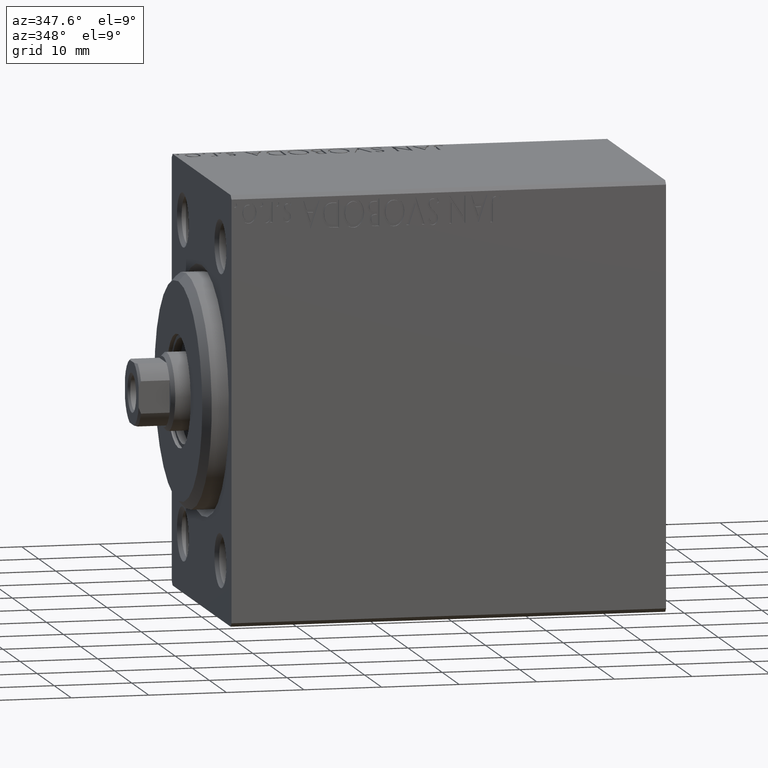
[diagram: clean part render]
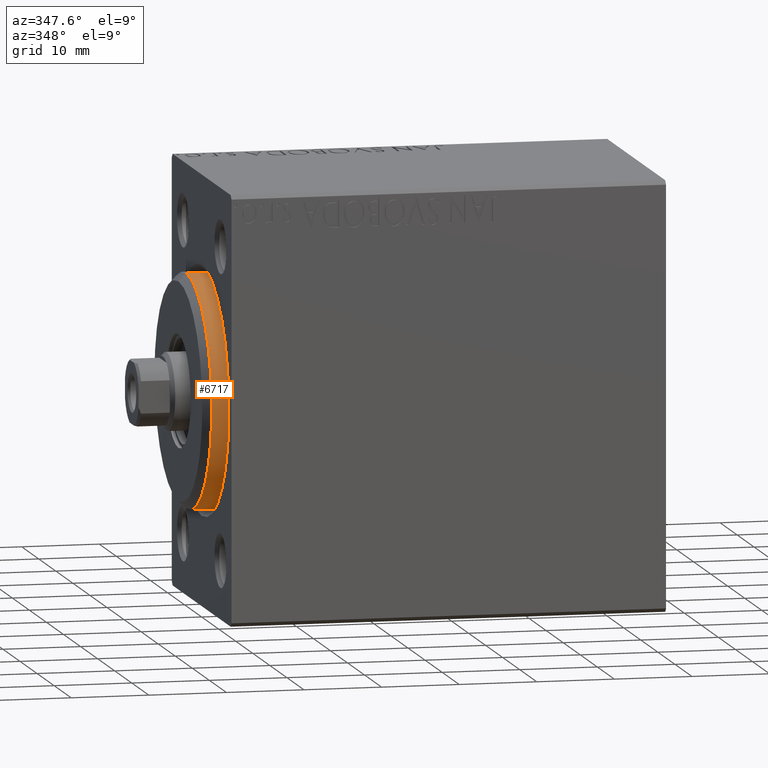
[diagram: same view with one face highlighted and labeled with its STEP entity id]
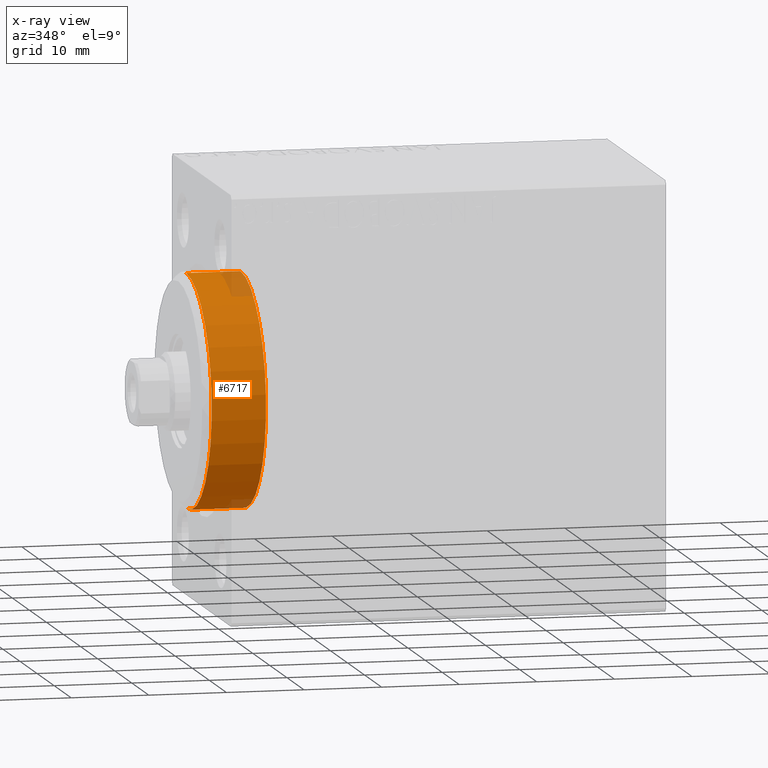
[diagram: x-ray of the same camera — body ghosted, the highlighted face saturated]
A machine part, auxiliary view. The second image highlights one B-rep face of the part: STEP entity #6717.
The next image is the same camera in x-ray: the body ghosted, the highlighted face saturated — about 6% of this face is hidden behind the body in this view.
In plain terms, the highlighted cylindrical surface (partial cylindrical patch) has radius 15 mm, axis along (1, -0, -0).
Its self-contained STEP definition (entity closure, byte-faithful):
#2320 = CIRCLE ( 'NONE', #8030, 15.00000000000000000 ) ;
#3017 = AXIS2_PLACEMENT_3D ( 'NONE', #14122, #3423, #34677 ) ;
#3423 = DIRECTION ( 'NONE',  ( -1.000000000000000000, 0.000000000000000000, 0.000000000000000000 ) ) ;
#4223 = DIRECTION ( 'NONE',  ( 0.000000000000000000, 0.000000000000000000, -1.000000000000000000 ) ) ;
#6717 = ADVANCED_FACE ( 'NONE', ( #27184 ), #23602, .T. ) ;
#7035 = DIRECTION ( 'NONE',  ( -1.000000000000000000, -0.000000000000000000, -0.000000000000000000 ) ) ;
#7692 = DIRECTION ( 'NONE',  ( -1.000000000000000000, -0.000000000000000000, -0.000000000000000000 ) ) ;
#8030 = AXIS2_PLACEMENT_3D ( 'NONE', #20982, #34597, #4223 ) ;
#8132 = LINE ( 'NONE', #28684, #32299 ) ;
#9263 = ORIENTED_EDGE ( 'NONE', *, *, #20438, .T. ) ;
#10423 = CARTESIAN_POINT ( 'NONE',  ( 3.000000000000000000, 0.000000000000000000, 0.000000000000000000 ) ) ;
#12312 = CARTESIAN_POINT ( 'NONE',  ( -5.000000000000000000, 0.000000000000000000, 15.00000000000000000 ) ) ;
#14122 = CARTESIAN_POINT ( 'NONE',  ( -5.000000000000000000, 0.000000000000000000, 0.000000000000000000 ) ) ;
#14250 = EDGE_LOOP ( 'NONE', ( #9263, #43347, #15624, #23636 ) ) ;
#15308 = CARTESIAN_POINT ( 'NONE',  ( 1.999999999999995781, 1.836970198721029589E-15, -15.00000000000000000 ) ) ;
#15624 = ORIENTED_EDGE ( 'NONE', *, *, #15743, .F. ) ;
#15743 = EDGE_CURVE ( 'NONE', #24919, #25488, #22293, .T. ) ;
#16377 = VERTEX_POINT ( 'NONE', #34354 ) ;
#17771 = DIRECTION ( 'NONE',  ( -1.000000000000000000, -0.000000000000000000, -0.000000000000000000 ) ) ;
#19563 = VECTOR ( 'NONE', #7035, 1000.000000000000000 ) ;
#20313 = EDGE_CURVE ( 'NONE', #32838, #25488, #8132, .T. ) ;
#20438 = EDGE_CURVE ( 'NONE', #16377, #32838, #2320, .T. ) ;
#20982 = CARTESIAN_POINT ( 'NONE',  ( 1.999999999999995781, 0.000000000000000000, 0.000000000000000000 ) ) ;
#22293 = CIRCLE ( 'NONE', #3017, 15.00000000000000000 ) ;
#23602 = CYLINDRICAL_SURFACE ( 'NONE', #31339, 15.00000000000000000 ) ;
#23636 = ORIENTED_EDGE ( 'NONE', *, *, #42643, .F. ) ;
#24046 = DIRECTION ( 'NONE',  ( 0.000000000000000000, 0.000000000000000000, 1.000000000000000000 ) ) ;
#24919 = VERTEX_POINT ( 'NONE', #12312 ) ;
#25488 = VERTEX_POINT ( 'NONE', #43701 ) ;
#27184 = FACE_OUTER_BOUND ( 'NONE', #14250, .T. ) ;
#28684 = CARTESIAN_POINT ( 'NONE',  ( 3.000000000000000000, 1.836970198721029589E-15, -15.00000000000000000 ) ) ;
#30498 = LINE ( 'NONE', #36968, #19563 ) ;
#31339 = AXIS2_PLACEMENT_3D ( 'NONE', #10423, #17771, #24046 ) ;
#32299 = VECTOR ( 'NONE', #7692, 1000.000000000000000 ) ;
#32838 = VERTEX_POINT ( 'NONE', #15308 ) ;
#34354 = CARTESIAN_POINT ( 'NONE',  ( 1.999999999999995781, 0.000000000000000000, 15.00000000000000000 ) ) ;
#34597 = DIRECTION ( 'NONE',  ( -1.000000000000000000, 0.000000000000000000, 0.000000000000000000 ) ) ;
#34677 = DIRECTION ( 'NONE',  ( 0.000000000000000000, 0.000000000000000000, 1.000000000000000000 ) ) ;
#36968 = CARTESIAN_POINT ( 'NONE',  ( 3.000000000000000000, 0.000000000000000000, 15.00000000000000000 ) ) ;
#42643 = EDGE_CURVE ( 'NONE', #16377, #24919, #30498, .T. ) ;
#43347 = ORIENTED_EDGE ( 'NONE', *, *, #20313, .T. ) ;
#43701 = CARTESIAN_POINT ( 'NONE',  ( -5.000000000000000000, 1.836970198721029589E-15, -15.00000000000000000 ) ) ;